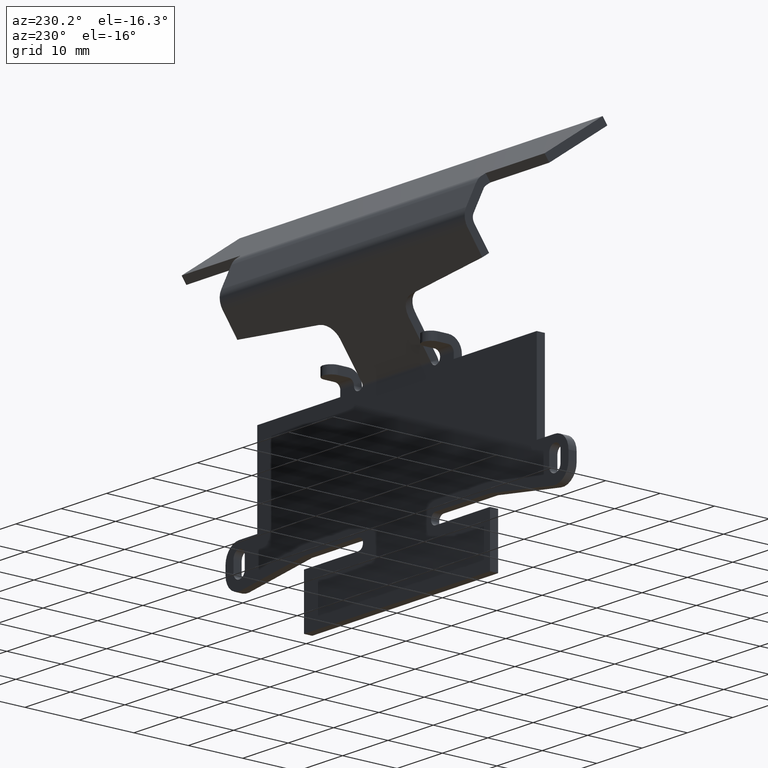
[diagram: clean part render]
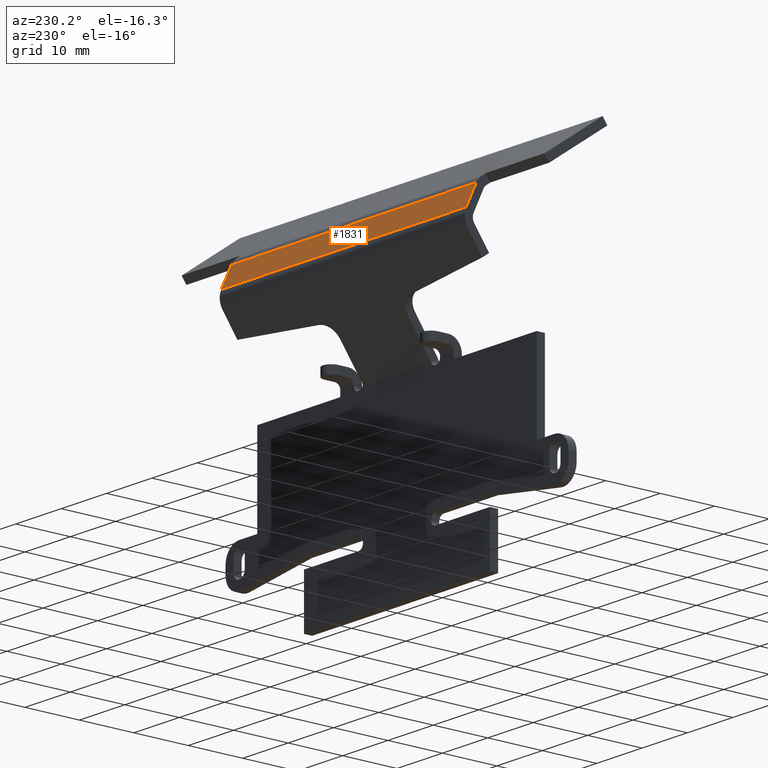
[diagram: same view with one face highlighted and labeled with its STEP entity id]
A machine part, auxiliary view. The second image highlights one B-rep face of the part: STEP entity #1831.
In plain terms, the highlighted planar face has unit normal (0, 0.9063, 0.4226).
Its self-contained STEP definition (entity closure, byte-faithful):
#29 = DIRECTION ( 'NONE',  ( -1.000000000000000000, 0.0000000000000000000, 0.0000000000000000000 ) ) ;
#241 = EDGE_CURVE ( 'NONE', #2071, #917, #930, .T. ) ;
#278 = LINE ( 'NONE', #2845, #2513 ) ;
#292 = ORIENTED_EDGE ( 'NONE', *, *, #241, .T. ) ;
#296 = CARTESIAN_POINT ( 'NONE',  ( -27.00000000000000400, 9.791075290276825900, -22.23260362036016600 ) ) ;
#383 = DIRECTION ( 'NONE',  ( -1.000000000000000000, 0.0000000000000000000, 0.0000000000000000000 ) ) ;
#417 = LINE ( 'NONE', #1135, #755 ) ;
#435 = ORIENTED_EDGE ( 'NONE', *, *, #724, .T. ) ;
#724 = EDGE_CURVE ( 'NONE', #917, #1260, #278, .T. ) ;
#755 = VECTOR ( 'NONE', #383, 1000.000000000000000 ) ;
#762 = ORIENTED_EDGE ( 'NONE', *, *, #1784, .T. ) ;
#831 = CARTESIAN_POINT ( 'NONE',  ( 27.00000000000000700, 12.78240844443101100, -28.64753827099348600 ) ) ;
#917 = VERTEX_POINT ( 'NONE', #296 ) ;
#930 = LINE ( 'NONE', #1348, #1139 ) ;
#1011 = DIRECTION ( 'NONE',  ( 0.0000000000000000000, -0.4226182617407002200, 0.9063077870366494900 ) ) ;
#1120 = CARTESIAN_POINT ( 'NONE',  ( 8.500000000000000000, 17.85382758531941500, -39.52323171543329000 ) ) ;
#1135 = CARTESIAN_POINT ( 'NONE',  ( 8.500000000000000000, 7.959932008484636300, -18.30570418011224000 ) ) ;
#1139 = VECTOR ( 'NONE', #29, 1000.000000000000000 ) ;
#1260 = VERTEX_POINT ( 'NONE', #1457 ) ;
#1348 = CARTESIAN_POINT ( 'NONE',  ( 8.500000000000000000, 9.791075290276825900, -22.23260362036016600 ) ) ;
#1457 = CARTESIAN_POINT ( 'NONE',  ( -27.00000000000000400, 7.959932008484636300, -18.30570418011224000 ) ) ;
#1506 = AXIS2_PLACEMENT_3D ( 'NONE', #1120, #2161, #1011 ) ;
#1592 = FACE_OUTER_BOUND ( 'NONE', #2726, .T. ) ;
#1671 = VECTOR ( 'NONE', #1793, 1000.000000000000100 ) ;
#1784 = EDGE_CURVE ( 'NONE', #2748, #2071, #2889, .T. ) ;
#1793 = DIRECTION ( 'NONE',  ( 2.569960705150825400E-016, 0.4226182617407002200, -0.9063077870366494900 ) ) ;
#1831 = ADVANCED_FACE ( 'NONE', ( #1592 ), #2054, .T. ) ;
#1930 = CARTESIAN_POINT ( 'NONE',  ( 27.00000000000000400, 9.791075290276825900, -22.23260362036016600 ) ) ;
#2054 = PLANE ( 'NONE',  #1506 ) ;
#2071 = VERTEX_POINT ( 'NONE', #1930 ) ;
#2075 = CARTESIAN_POINT ( 'NONE',  ( 27.00000000000000400, 7.959932008484636300, -18.30570418011224000 ) ) ;
#2161 = DIRECTION ( 'NONE',  ( 0.0000000000000000000, 0.9063077870366496000, 0.4226182617407002700 ) ) ;
#2323 = ORIENTED_EDGE ( 'NONE', *, *, #2730, .F. ) ;
#2513 = VECTOR ( 'NONE', #2859, 1000.000000000000100 ) ;
#2726 = EDGE_LOOP ( 'NONE', ( #762, #292, #435, #2323 ) ) ;
#2730 = EDGE_CURVE ( 'NONE', #2748, #1260, #417, .T. ) ;
#2748 = VERTEX_POINT ( 'NONE', #2075 ) ;
#2845 = CARTESIAN_POINT ( 'NONE',  ( -27.00000000000000700, 12.78240844443101100, -28.64753827099348600 ) ) ;
#2859 = DIRECTION ( 'NONE',  ( 2.569960705150825400E-016, -0.4226182617407002200, 0.9063077870366494900 ) ) ;
#2889 = LINE ( 'NONE', #831, #1671 ) ;